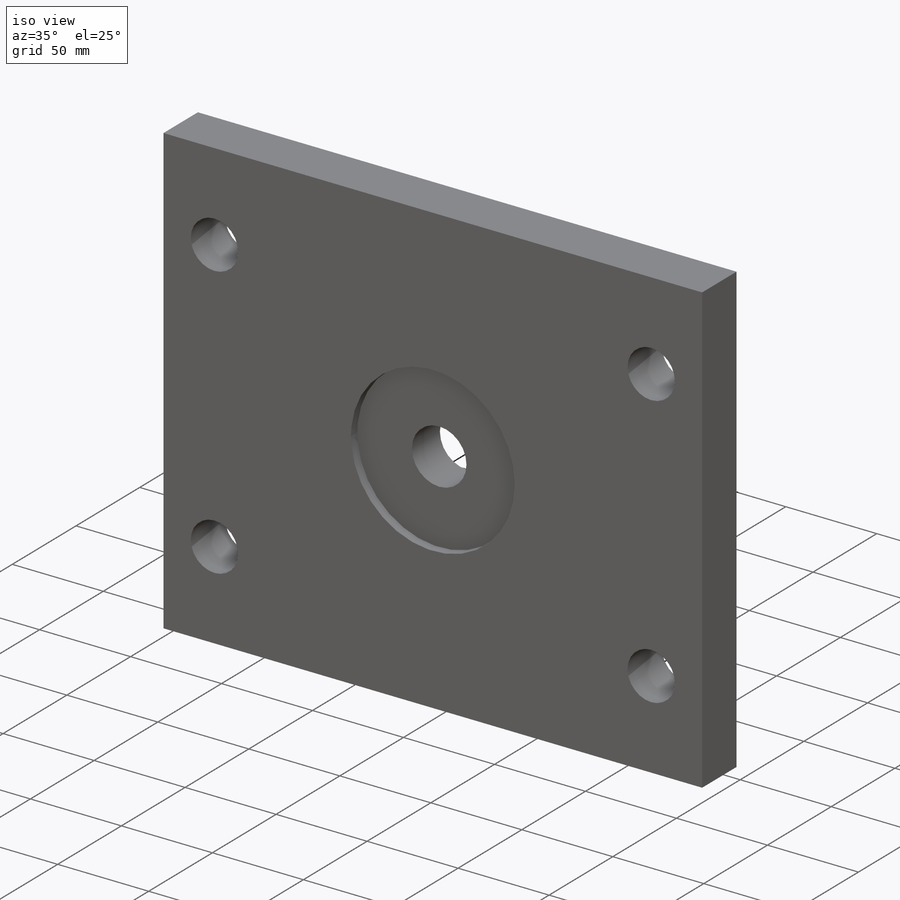
[diagram: iso view]
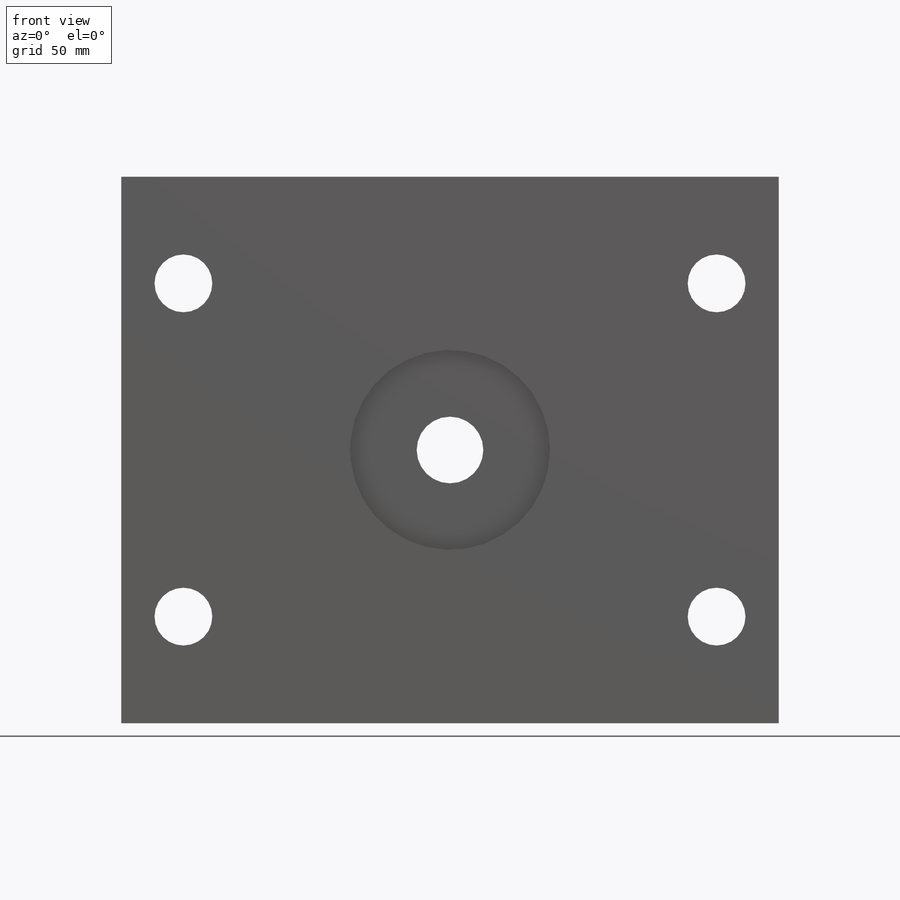
[diagram: front view]
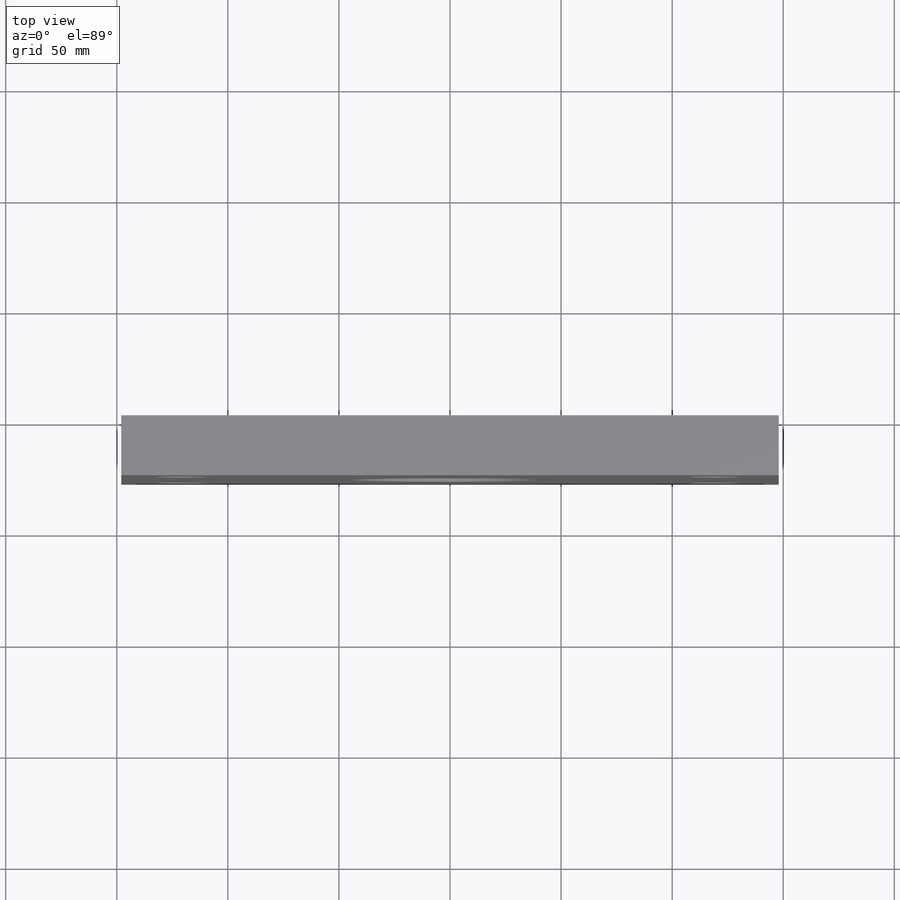
[diagram: top view]
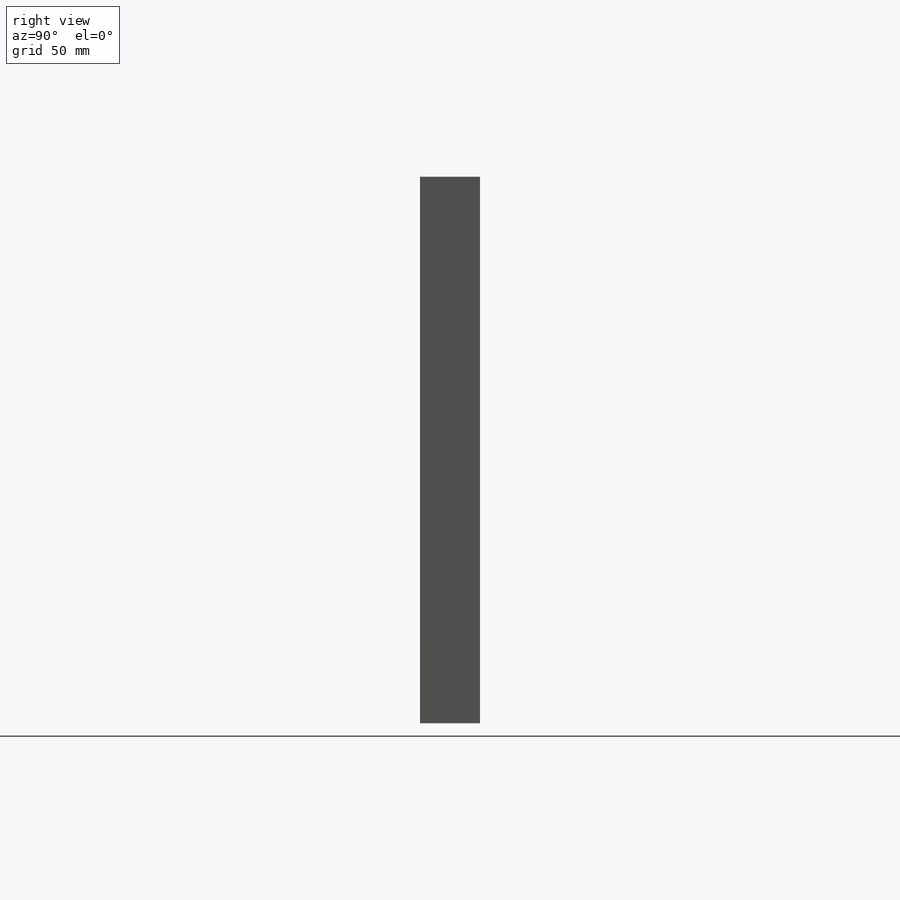
[diagram: right view]
SOLIDWORKS PART (.sldprt)
format: sldprt  version: not decoded by parser v0  size: 142,848 bytes
history: native  units: mm
features: sketch x3, cut_extrude x2, material x1, extrude x1 (+11 scaffold rows collapsed)
feature tree (18):
  scaffold x11  (default folders/planes/origin — collapsed)
  material  "Материал <не указан>"
  sketch  "Sketch1"  dims[D1=296.0mm D2=246.0mm]
  extrude  "Extrude1"  Depth=27mm
  sketch  "Sketch2"  dims[D1=90.0mm]
  cut_extrude  "Extrude2"  Depth=5mm
  sketch  "Sketch3"  dims[D1=30.0mm]
  cut_extrude  "Extrude3"  [1 undecoded]
decode coverage: 5 of 6 modeling features carry decoded parameters
note: 1 parameter value undecoded
note: suppression state not decoded; provenance and decode notes live in map.json
